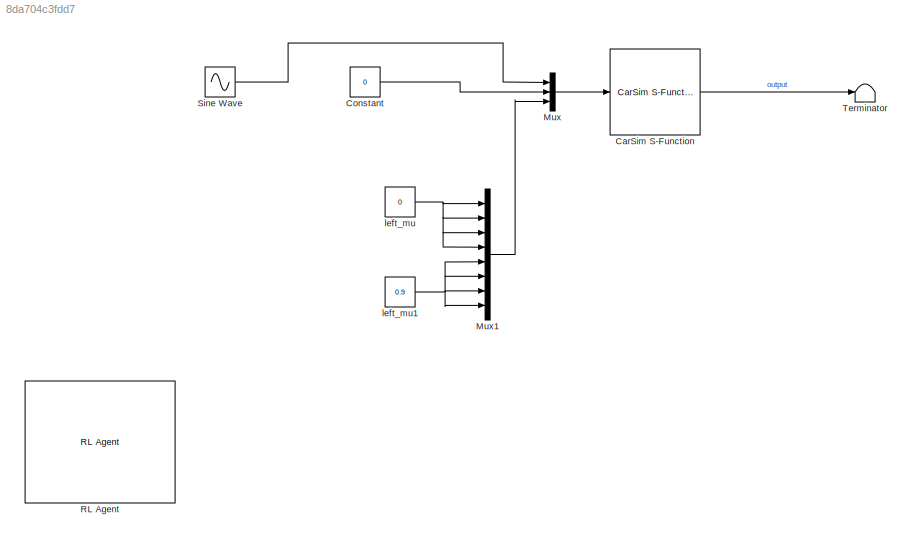
MODEL slx_8da704c3fdd7
KIND model
CONFIG AbsTol = auto
CONFIG EnableMultiTasking = off
CONFIG FixedStep = auto
CONFIG MaxStep = auto
CONFIG MinStep = auto
CONFIG RelTol = 1e-3
CONFIG SampleTimeConstraint = Unconstrained
CONFIG SolverName = VariableStepAuto
CONFIG StartTime = 0.0
CONFIG StopTime = 10.0
BLOCK [Reference] CarSim S-Function  REF=Solver_SF/CarSim S-Function
  Priority = 1
  SourceBlock = Solver_SF/CarSim S-Function
  SourceProductName = CarSim S-Function
  SourceType = Vehicle math model library
BLOCK [Constant] Constant
  Value = 0
BLOCK [Mux] Mux
  DisplayOption = bar
  Inputs = 3
BLOCK [Mux] Mux1
  DisplayOption = bar
  Inputs = 8
BLOCK [Reference] RL Agent  REF=rllib/RL Agent
  SourceBlock = rllib/RL Agent
  SourceType = RL Agent
BLOCK [Sin] Sine Wave
  Amplitude = 500
  SampleTime = 0
BLOCK [Terminator] Terminator
BLOCK [Constant] left_mu
  Value = 0
BLOCK [Constant] left_mu1
  Value = 0.9
LINE CarSim S-Function:1 -> Terminator:1
LINE Constant:1 -> Mux:2
LINE Mux1:1 -> Mux:3
LINE Mux:1 -> CarSim S-Function:1
LINE Sine Wave:1 -> Mux:1
NET left_mu1:1 -> Mux1:5, Mux1:6, Mux1:7, Mux1:8
NET left_mu:1 -> Mux1:1, Mux1:2, Mux1:3, Mux1:4
note: NET lines group one-source signal fan-out (src -> all destinations, sorted); 1:1 wires keep LINE
